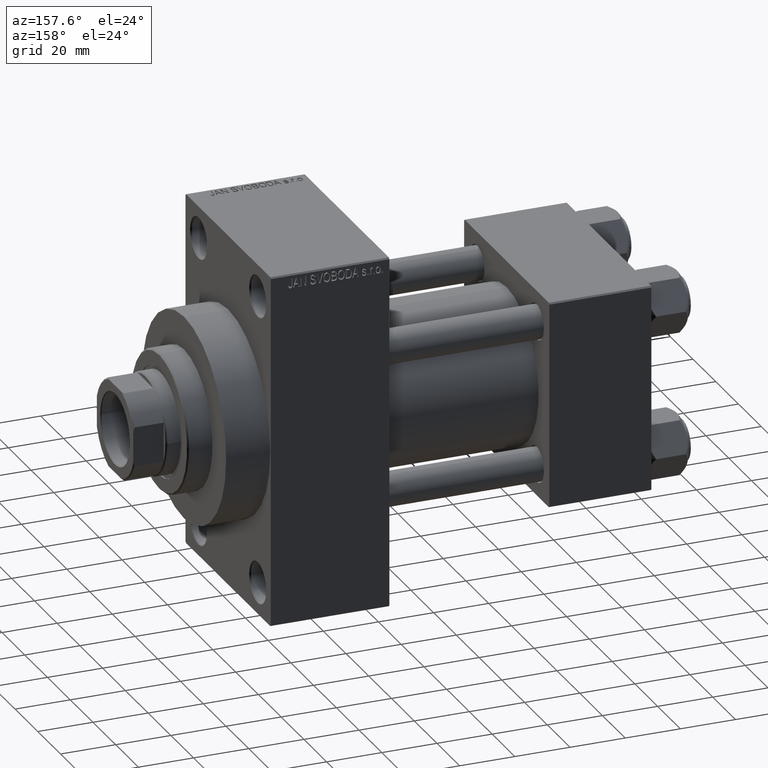
[diagram: clean part render]
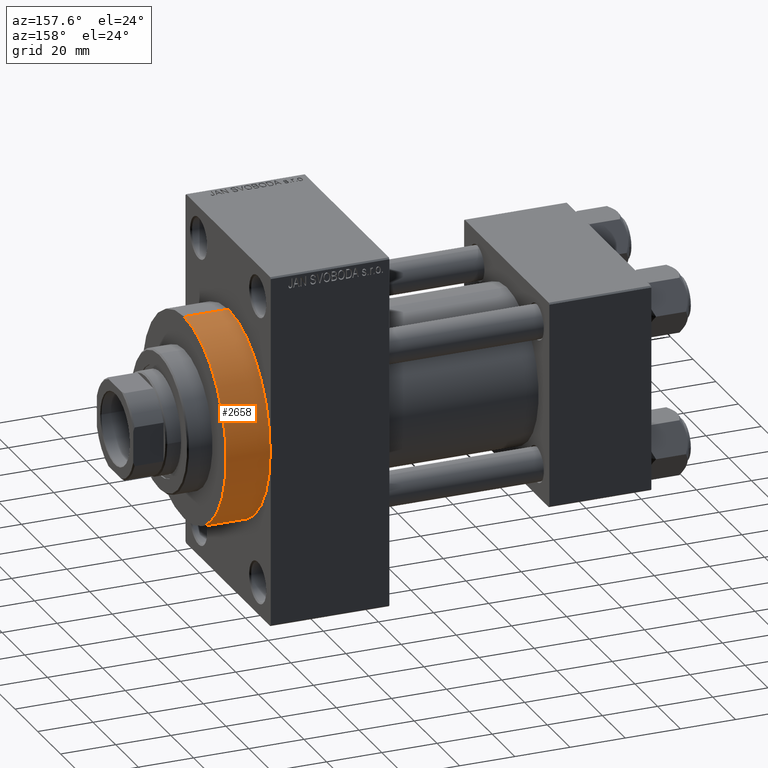
[diagram: same view with one face highlighted and labeled with its STEP entity id]
A machine part, auxiliary view. The second image highlights one B-rep face of the part: STEP entity #2658.
In plain terms, the highlighted cylindrical surface (partial cylindrical patch) has radius 37 mm, axis along (-1, -0, -0).
Its self-contained STEP definition (entity closure, byte-faithful):
#2658 = ADVANCED_FACE ( 'NONE', ( #43656 ), #42939, .T. ) ;
#4021 = VERTEX_POINT ( 'NONE', #17140 ) ;
#4340 = CIRCLE ( 'NONE', #41644, 37.00000000000000000 ) ;
#5089 = ORIENTED_EDGE ( 'NONE', *, *, #44884, .F. ) ;
#5325 = CARTESIAN_POINT ( 'NONE',  ( 154.0000000000000284, 0.000000000000000000, 37.00000000000000000 ) ) ;
#8907 = LINE ( 'NONE', #5325, #30240 ) ;
#10497 = DIRECTION ( 'NONE',  ( 0.000000000000000000, 0.000000000000000000, 1.000000000000000000 ) ) ;
#13021 = CARTESIAN_POINT ( 'NONE',  ( 138.0000000000000000, 0.000000000000000000, 37.00000000000000000 ) ) ;
#14331 = VERTEX_POINT ( 'NONE', #46653 ) ;
#17031 = DIRECTION ( 'NONE',  ( -1.000000000000000000, -0.000000000000000000, -0.000000000000000000 ) ) ;
#17140 = CARTESIAN_POINT ( 'NONE',  ( 154.0000000000000284, 0.000000000000000000, 37.00000000000000000 ) ) ;
#17736 = VERTEX_POINT ( 'NONE', #13021 ) ;
#21086 = CARTESIAN_POINT ( 'NONE',  ( 138.0000000000000000, 0.000000000000000000, 0.000000000000000000 ) ) ;
#21327 = DIRECTION ( 'NONE',  ( 1.000000000000000000, 0.000000000000000000, 0.000000000000000000 ) ) ;
#21741 = CARTESIAN_POINT ( 'NONE',  ( 154.0000000000000284, 4.531193156845206793E-15, -37.00000000000000000 ) ) ;
#23396 = ORIENTED_EDGE ( 'NONE', *, *, #27769, .T. ) ;
#24286 = DIRECTION ( 'NONE',  ( 1.000000000000000000, 0.000000000000000000, 0.000000000000000000 ) ) ;
#27769 = EDGE_CURVE ( 'NONE', #29966, #17736, #45982, .T. ) ;
#28001 = DIRECTION ( 'NONE',  ( 0.000000000000000000, 0.000000000000000000, -1.000000000000000000 ) ) ;
#28185 = DIRECTION ( 'NONE',  ( -1.000000000000000000, -0.000000000000000000, -0.000000000000000000 ) ) ;
#28498 = CARTESIAN_POINT ( 'NONE',  ( 138.0000000000000000, 4.531193156845206793E-15, -37.00000000000000000 ) ) ;
#29966 = VERTEX_POINT ( 'NONE', #28498 ) ;
#30240 = VECTOR ( 'NONE', #17031, 1000.000000000000000 ) ;
#32776 = AXIS2_PLACEMENT_3D ( 'NONE', #35306, #39128, #10497 ) ;
#33208 = EDGE_CURVE ( 'NONE', #14331, #29966, #42750, .T. ) ;
#35306 = CARTESIAN_POINT ( 'NONE',  ( 154.0000000000000284, 0.000000000000000000, 0.000000000000000000 ) ) ;
#36853 = ORIENTED_EDGE ( 'NONE', *, *, #33208, .T. ) ;
#38599 = CARTESIAN_POINT ( 'NONE',  ( 154.0000000000000284, 0.000000000000000000, 0.000000000000000000 ) ) ;
#38842 = DIRECTION ( 'NONE',  ( 0.000000000000000000, 0.000000000000000000, -1.000000000000000000 ) ) ;
#39128 = DIRECTION ( 'NONE',  ( -1.000000000000000000, -0.000000000000000000, -0.000000000000000000 ) ) ;
#39877 = AXIS2_PLACEMENT_3D ( 'NONE', #21086, #21327, #28001 ) ;
#39958 = ORIENTED_EDGE ( 'NONE', *, *, #44274, .F. ) ;
#41644 = AXIS2_PLACEMENT_3D ( 'NONE', #38599, #24286, #38842 ) ;
#42061 = EDGE_LOOP ( 'NONE', ( #39958, #36853, #23396, #5089 ) ) ;
#42750 = LINE ( 'NONE', #21741, #46113 ) ;
#42939 = CYLINDRICAL_SURFACE ( 'NONE', #32776, 37.00000000000000000 ) ;
#43656 = FACE_OUTER_BOUND ( 'NONE', #42061, .T. ) ;
#44274 = EDGE_CURVE ( 'NONE', #14331, #4021, #4340, .T. ) ;
#44884 = EDGE_CURVE ( 'NONE', #4021, #17736, #8907, .T. ) ;
#45982 = CIRCLE ( 'NONE', #39877, 37.00000000000000000 ) ;
#46113 = VECTOR ( 'NONE', #28185, 1000.000000000000000 ) ;
#46653 = CARTESIAN_POINT ( 'NONE',  ( 154.0000000000000284, 4.531193156845206793E-15, -37.00000000000000000 ) ) ;